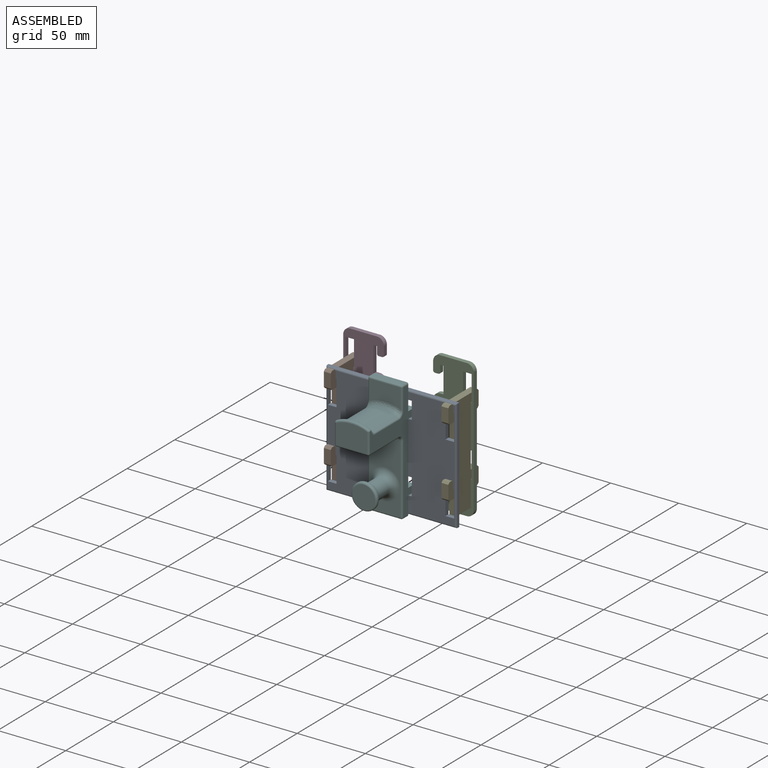
[diagram: assembled view]
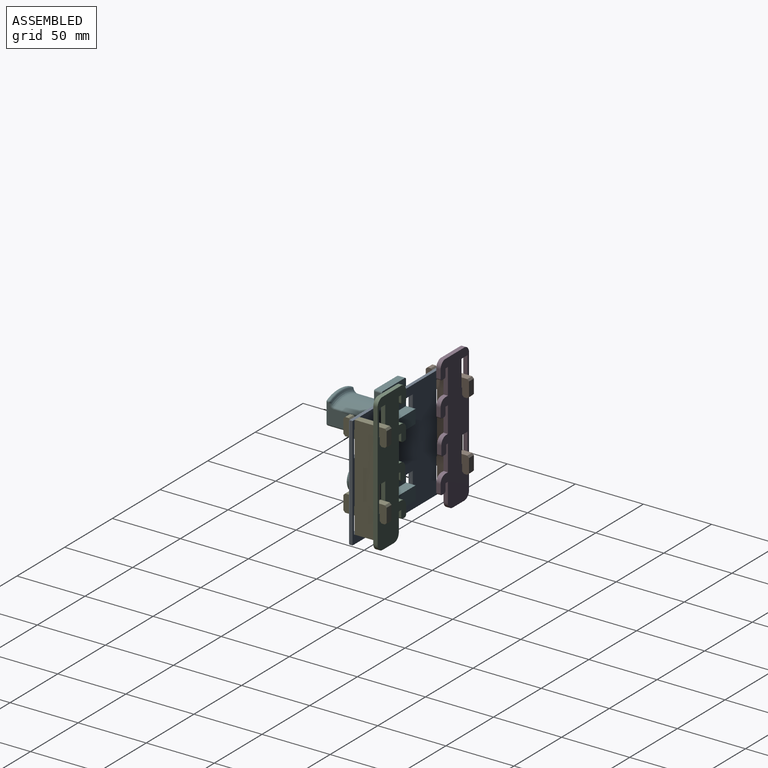
[diagram: assembled view, second angle]
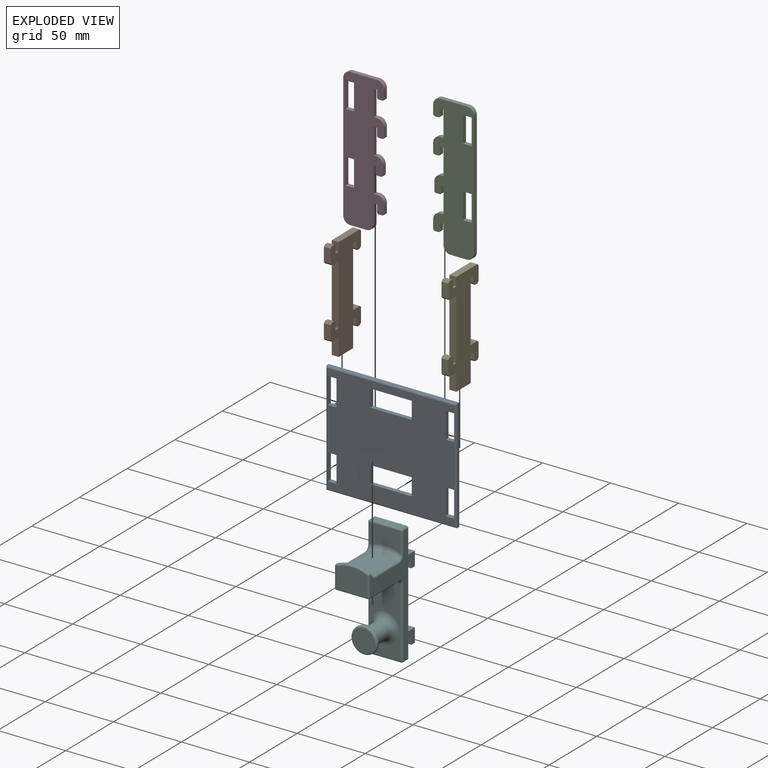
[diagram: exploded view]
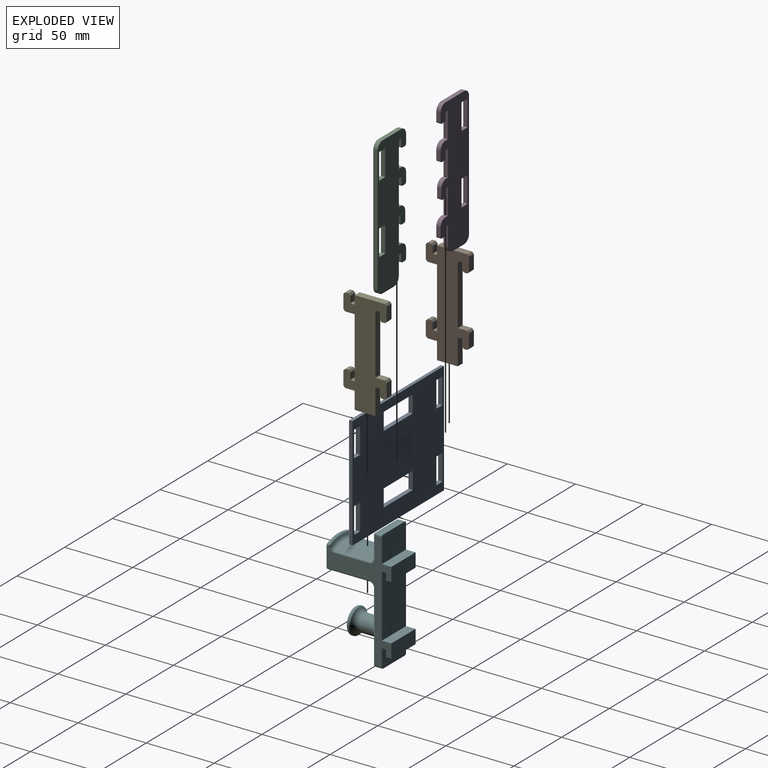
[diagram: exploded view, second angle]
ASSEMBLY  parts=6 mates=5
PART A: 34 faces, bbox 95.9x3.2x82.6 mm
  f0: plane 12.7x3.18mm, normal (1,0,0), area 40.3mm2, adj f1,f27,f28,f29
  f1: plane 30.48x3.18mm, normal (0,0,-1), area 96.8mm2, adj f0,f2,f28,f29
  f2: plane 12.7x3.18mm, normal (-1,0,0), area 40.3mm2, adj f1,f27,f28,f29
  f3: plane 12.7x3.18mm, normal (1,0,0), area 40.3mm2, adj f4,f21,f28,f29
  f4: plane 30.48x3.18mm, normal (0,0,-1), area 96.8mm2, adj f3,f5,f28,f29
  f5: plane 12.7x3.18mm, normal (-1,0,0), area 40.3mm2, adj f4,f21,f28,f29
  f6: plane 19.05x3.18mm, normal (1,0,0), area 60.5mm2, adj f7,f22,f28,f29
  f7: plane 6.35x3.18mm, normal (0,0,-1), area 20.2mm2, adj f6,f8,f28,f29
  f8: plane 19.05x3.18mm, normal (-1,0,0), area 60.5mm2, adj f7,f22,f28,f29
  f9: plane 19.07x3.18mm, normal (-1,0,0), area 60.6mm2, adj f10,f23,f28,f29
  f10: plane 6.35x3.18mm, normal (0,0,1), area 20.2mm2, adj f9,f11,f28,f29
  f11: plane 19.05x3.18mm, normal (1,0,0), area 60.5mm2, adj f10,f23,f28,f29
  f12: plane 6.35x3.18mm, normal (0,0,1), area 20.2mm2, adj f13,f24,f28,f29
  f13: plane 19.05x3.18mm, normal (1,0,0), area 60.5mm2, adj f12,f14,f28,f29
  f14: plane 6.35x3.18mm, normal (0,0,-1), area 20.2mm2, adj f13,f24,f28,f29
  f15: plane 6.35x3.18mm, normal (0,0,1), area 20.2mm2, adj f16,f25,f28,f29
  f16: plane 19.07x3.18mm, normal (1,0,0), area 60.6mm2, adj f15,f17,f28,f29
  f17: plane 6.35x3.18mm, normal (0,0,-1), area 20.2mm2, adj f16,f25,f28,f29
  f18: plane 95.89x1.91mm, normal (0,0,-1), area 182.7mm2, adj f19,f26,f29,f32
  f19: plane 82.55x1.91mm, normal (1,0,0), area 157.3mm2, adj f18,f20,f29,f30
  f20: plane 95.89x1.91mm, normal (0,0,1), area 182.7mm2, adj f19,f26,f29,f31
  f21: plane 30.48x3.18mm, normal (0,0,1), area 96.8mm2, adj f3,f5,f28,f29
  f22: plane 6.35x3.18mm, normal (0,0,1), area 20.2mm2, adj f6,f8,f28,f29
  f23: plane 6.35x3.18mm, normal (0,0,-1), area 20.2mm2, adj f9,f11,f28,f29
  f24: plane 19.05x3.18mm, normal (-1,0,0), area 60.5mm2, adj f12,f14,f28,f29
  f25: plane 19.05x3.18mm, normal (-1,0,0), area 60.5mm2, adj f15,f17,f28,f29
  f26: plane 82.55x1.91mm, normal (-1,0,0), area 157.3mm2, adj f18,f20,f29,f33
  f27: plane 30.48x3.18mm, normal (0,0,1), area 96.8mm2, adj f0,f2,f28,f29
  f28: plane 93.35x80.01mm, normal (0,-1,0), area 6210.3mm2, adj f0,f1,f2,f3,f4,f5,f6,f7
  f29: plane 95.89x82.55mm, normal (0,1,0), area 6657.1mm2, adj f0,f1,f2,f3,f4,f5,f6,f7
  f30: cylinder r=1.27mm len=82.55mm, axis (0,0,-1), area 162.8mm2, adj f19,f28,f31,f32
  f31: cylinder r=1.27mm len=95.89mm, axis (1,0,0), area 189.4mm2, adj f20,f28,f30,f33
  f32: cylinder r=1.27mm len=95.89mm, axis (-1,0,0), area 189.4mm2, adj f18,f28,f30,f33
  f33: cylinder r=1.27mm len=82.55mm, axis (0,0,1), area 162.8mm2, adj f26,f28,f31,f32
PART B: 40 faces, bbox 31.8x5.1x76.2 mm
  f0: plane 5.08x3.18mm, normal (0,0,-1), area 16.1mm2, adj f1,f25,f26,f27
  f1: plane 19.05x5.08mm, normal (-1,0,0), area 96.8mm2, adj f0,f2,f26,f27
  f2: plane 15.24x5.08mm, normal (0,0,-1), area 77.4mm2, adj f1,f3,f26,f27
  f3: plane 12.7x5.08mm, normal (1,0,0), area 64.5mm2, adj f2,f4,f26,f27
  f4: plane 6.99x5.08mm, normal (0,0,-1), area 35.5mm2, adj f3,f26,f27,f31
  f5: plane 10.16x5.08mm, normal (1,0,0), area 51.6mm2, adj f26,f27,f31,f33
  f6: plane 5.08x2.54mm, normal (0,0,1), area 12.9mm2, adj f26,f27,f32,f33
  f7: plane 5.08x5.08mm, normal (-1,0,0), area 25.8mm2, adj f8,f26,f27,f32
  f8: plane 5.08x3.18mm, normal (0,0,1), area 16.1mm2, adj f7,f9,f26,f27
  f9: plane 44.45x5.08mm, normal (1,0,0), area 225.8mm2, adj f8,f10,f26,f27
  f10: plane 6.99x5.08mm, normal (0,0,-1), area 35.5mm2, adj f9,f26,f27,f37
  f11: plane 10.16x5.08mm, normal (1,0,0), area 51.6mm2, adj f26,f27,f37,f38
  f12: plane 5.08x2.54mm, normal (0,0,1), area 12.9mm2, adj f26,f27,f38,f39
  f13: plane 5.08x5.08mm, normal (-1,0,0), area 25.8mm2, adj f14,f26,f27,f39
  f14: plane 5.08x3.18mm, normal (0,0,1), area 16.1mm2, adj f13,f15,f26,f27
  f15: plane 6.35x5.08mm, normal (1,0,0), area 32.3mm2, adj f14,f16,f26,f27
  f16: plane 22.23x5.08mm, normal (0,0,1), area 112.9mm2, adj f15,f26,f27,f34
  f17: plane 10.16x5.08mm, normal (-1,0,0), area 51.6mm2, adj f26,f27,f34,f35
  f18: plane 5.08x2.54mm, normal (0,0,-1), area 12.9mm2, adj f26,f27,f35,f36
  f19: plane 5.08x5.08mm, normal (1,0,0), area 25.8mm2, adj f20,f26,f27,f36
  f20: plane 5.08x3.18mm, normal (0,0,-1), area 16.1mm2, adj f19,f21,f26,f27
  f21: plane 44.45x5.08mm, normal (-1,0,0), area 225.8mm2, adj f20,f22,f26,f27
  f22: plane 6.99x5.08mm, normal (0,0,1), area 35.5mm2, adj f21,f26,f27,f30
  f23: plane 10.16x5.08mm, normal (-1,0,0), area 51.6mm2, adj f26,f27,f29,f30
  f24: plane 5.08x2.54mm, normal (0,0,-1), area 12.9mm2, adj f26,f27,f28,f29
  f25: plane 5.08x5.08mm, normal (1,0,0), area 25.8mm2, adj f0,f26,f27,f28
  f26: plane 76.2x31.75mm, normal (0,-1,0), area 1490.3mm2, adj f0,f1,f2,f3,f4,f5,f6,f7
  f27: plane 76.2x31.75mm, normal (0,1,0), area 1490.3mm2, adj f0,f1,f2,f3,f4,f5,f6,f7
  f28: plane 5.08x1.27mm, normal (0.71,0,-0.71), area 9.1mm2, adj f24,f25,f26,f27
  f29: plane 5.08x1.27mm, normal (-0.71,0,-0.71), area 9.1mm2, adj f23,f24,f26,f27
  f30: plane 5.08x1.27mm, normal (-0.71,0,0.71), area 9.1mm2, adj f22,f23,f26,f27
  f31: plane 5.08x1.27mm, normal (0.71,0,-0.71), area 9.1mm2, adj f4,f5,f26,f27
  f32: plane 5.08x1.27mm, normal (-0.71,0,0.71), area 9.1mm2, adj f6,f7,f26,f27
  f33: plane 5.08x1.27mm, normal (0.71,0,0.71), area 9.1mm2, adj f5,f6,f26,f27
  f34: plane 5.08x1.27mm, normal (-0.71,0,0.71), area 9.1mm2, adj f16,f17,f26,f27
  f35: plane 5.08x1.27mm, normal (-0.71,0,-0.71), area 9.1mm2, adj f17,f18,f26,f27
  f36: plane 5.08x1.27mm, normal (0.71,0,-0.71), area 9.1mm2, adj f18,f19,f26,f27
  f37: plane 5.08x1.27mm, normal (0.71,0,-0.71), area 9.1mm2, adj f10,f11,f26,f27
  f38: plane 5.08x1.27mm, normal (0.71,0,0.71), area 9.1mm2, adj f11,f12,f26,f27
  f39: plane 5.08x1.27mm, normal (-0.71,0,0.71), area 9.1mm2, adj f12,f13,f26,f27
PART C: 51 faces, bbox 29.8x3.2x101.6 mm
  f0: plane 19.05x3.18mm, normal (1,0,0), area 60.5mm2, adj f1,f33,f34,f35
  f1: plane 6.35x3.18mm, normal (0,0,-1), area 20.2mm2, adj f0,f2,f34,f35
  f2: plane 19.05x3.18mm, normal (-1,0,0), area 60.5mm2, adj f1,f33,f34,f35
  f3: plane 6.35x3.18mm, normal (0,0,1), area 20.2mm2, adj f4,f31,f34,f35
  f4: plane 19.05x3.18mm, normal (1,0,0), area 60.5mm2, adj f3,f5,f34,f35
  f5: plane 6.35x3.18mm, normal (0,0,-1), area 20.2mm2, adj f4,f31,f34,f35
  f6: plane 19.07x3.18mm, normal (1,0,0), area 60.6mm2, adj f7,f32,f34,f35
  f7: plane 3.18x1.69mm, normal (0,0,-1), area 5.4mm2, adj f6,f8,f34,f35
  f8: plane 5.08x3.18mm, normal (-1,0,0), area 16.1mm2, adj f7,f34,f35,f47
  f9: plane 3.18x2.54mm, normal (0,0,-1), area 8.1mm2, adj f34,f35,f47,f48
  f10: plane 6.35x3.18mm, normal (1,0,0), area 20.2mm2, adj f34,f35,f41,f48
  f11: plane 3.18x1.69mm, normal (0,0,1), area 5.4mm2, adj f12,f34,f35,f41
  f12: plane 19.03x3.18mm, normal (1,0,0), area 60.4mm2, adj f11,f13,f34,f35
  f13: plane 3.18x2.54mm, normal (0,0,-1), area 8.1mm2, adj f12,f14,f34,f35
  f14: plane 5.08x3.18mm, normal (-1,0,0), area 16.1mm2, adj f13,f34,f35,f45
  f15: plane 3.18x2.54mm, normal (0,0,-1), area 8.1mm2, adj f34,f35,f45,f46
  f16: plane 6.35x3.18mm, normal (1,0,0), area 20.2mm2, adj f34,f35,f40,f46
  f17: plane 3.18x2.54mm, normal (0,0,1), area 8.1mm2, adj f18,f34,f35,f40
  f18: plane 19.05x3.18mm, normal (1,0,0), area 60.5mm2, adj f17,f19,f34,f35
  f19: plane 3.18x2.54mm, normal (0,0,-1), area 8.1mm2, adj f18,f20,f34,f35
  f20: plane 5.08x3.18mm, normal (-1,0,0), area 16.1mm2, adj f19,f34,f35,f43
  f21: plane 3.18x2.54mm, normal (0,0,-1), area 8.1mm2, adj f34,f35,f43,f44
  f22: plane 6.35x3.18mm, normal (1,0,0), area 20.2mm2, adj f34,f35,f39,f44
  f23: plane 19.69x3.18mm, normal (0,0,1), area 62.5mm2, adj f34,f35,f37,f39
  f24: plane 91.44x3.18mm, normal (-1,0,0), area 290.3mm2, adj f34,f35,f37,f38
  f25: plane 12.07x3.18mm, normal (0,0,-1), area 38.3mm2, adj f34,f35,f36,f38
  f26: plane 13.97x3.18mm, normal (1,0,0), area 44.4mm2, adj f27,f34,f35,f36
  f27: plane 3.18x2.54mm, normal (0,0,-1), area 8.1mm2, adj f26,f28,f34,f35
  f28: plane 5.08x3.18mm, normal (-1,0,0), area 16.1mm2, adj f27,f34,f35,f49
  f29: plane 3.18x2.54mm, normal (0,0,-1), area 8.1mm2, adj f34,f35,f49,f50
  f30: plane 6.35x3.18mm, normal (1,0,0), area 20.2mm2, adj f34,f35,f42,f50
  f31: plane 19.07x3.18mm, normal (-1,0,0), area 60.6mm2, adj f3,f5,f34,f35
  f32: plane 3.18x2.54mm, normal (0,0,1), area 8.1mm2, adj f6,f34,f35,f42
  f33: plane 6.35x3.18mm, normal (0,0,1), area 20.2mm2, adj f0,f2,f34,f35
  f34: plane 101.6x29.85mm, normal (0,-1,0), area 2291.7mm2, adj f0,f1,f2,f3,f4,f5,f6,f7
  f35: plane 101.6x29.85mm, normal (0,1,0), area 2291.7mm2, adj f0,f1,f2,f3,f4,f5,f6,f7
  f36: cylinder r=5.08mm len=5.08mm, axis (0,-1,0), area 25.3mm2, adj f25,f26,f34,f35
  f37: cylinder r=5.08mm len=5.08mm, axis (0,1,0), area 25.3mm2, adj f23,f24,f34,f35
  f38: cylinder r=5.08mm len=5.08mm, axis (0,1,0), area 25.3mm2, adj f24,f25,f34,f35
  f39: cylinder r=5.08mm len=5.08mm, axis (0,-1,0), area 25.3mm2, adj f22,f23,f34,f35
  f40: cylinder r=5.08mm len=5.08mm, axis (0,1,0), area 25.3mm2, adj f16,f17,f34,f35
  f41: cylinder r=5.08mm len=5.08mm, axis (0,1,0), area 25.3mm2, adj f10,f11,f34,f35
  f42: cylinder r=5.08mm len=5.08mm, axis (0,1,0), area 25.3mm2, adj f30,f32,f34,f35
  f43: cylinder r=1.27mm len=3.18mm, axis (0,1,0), area 6.3mm2, adj f20,f21,f34,f35
  f44: cylinder r=1.27mm len=3.18mm, axis (0,1,0), area 6.3mm2, adj f21,f22,f34,f35
  f45: cylinder r=1.27mm len=3.18mm, axis (0,1,0), area 6.3mm2, adj f14,f15,f34,f35
  f46: cylinder r=1.27mm len=3.18mm, axis (0,1,0), area 6.3mm2, adj f15,f16,f34,f35
  f47: cylinder r=1.27mm len=3.18mm, axis (0,1,0), area 6.3mm2, adj f8,f9,f34,f35
  f48: cylinder r=1.27mm len=3.18mm, axis (0,1,0), area 6.3mm2, adj f9,f10,f34,f35
  f49: cylinder r=1.27mm len=3.18mm, axis (0,1,0), area 6.3mm2, adj f28,f29,f34,f35
  f50: cylinder r=1.27mm len=3.18mm, axis (0,1,0), area 6.3mm2, adj f29,f30,f34,f35
PART D: same geometry as C
PART E: same geometry as B
PART F: 71 faces, bbox 48.3x32.6x88.9 mm
  f0: plane 22.86x19.05mm, normal (1,0,0), area 230.3mm2, adj f26,f37,f61,f70
  f1: plane 31.98x22.86mm, normal (1,0,0), area 525.9mm2, adj f22,f26,f37,f70
  f2: plane 25.4x5.08mm, normal (1,0,0), area 129mm2, adj f3,f16,f17,f18
  f3: plane 25.4x3.18mm, normal (0,0,-1), area 80.6mm2, adj f2,f4,f17,f18
  f4: plane 45.72x25.4mm, normal (-1,0,0), area 1161.3mm2, adj f3,f5,f17,f18
  f5: plane 25.4x6.99mm, normal (0,0,1), area 177.4mm2, adj f4,f6,f17,f18
  f6: plane 25.4x10.16mm, normal (-1,0,0), area 258.1mm2, adj f5,f7,f17,f18
  f7: plane 25.4x3.81mm, normal (0,0,-1), area 96.8mm2, adj f6,f8,f17,f18
  f8: plane 25.4x5.08mm, normal (1,0,0), area 129mm2, adj f7,f9,f17,f18
  f9: plane 25.4x3.18mm, normal (0,0,-1), area 80.6mm2, adj f8,f10,f17,f18
  f10: plane 25.4x13.97mm, normal (-1,0,0), area 354.1mm2, adj f9,f11,f17,f18,f59,f63
  f11: plane 22.86x5.08mm, normal (0,0,-1), area 116.1mm2, adj f10,f59,f61,f63
  f12: plane 22.87x14.83mm, normal (1,0,0), area 302.4mm2, adj f21,f46,f49,f52
  f13: plane 25.4x19.05mm, normal (-1,0,0), area 483.2mm2, adj f14,f17,f18,f39,f47,f50
  f14: plane 25.4x6.99mm, normal (0,0,1), area 177.4mm2, adj f13,f15,f17,f18
  f15: plane 25.4x10.16mm, normal (-1,0,0), area 258.1mm2, adj f14,f16,f17,f18
  f16: plane 25.4x3.81mm, normal (0,0,-1), area 96.8mm2, adj f2,f15,f17,f18
  f17: plane 86.36x46.99mm, normal (0,-1,0), area 949.4mm2, adj f2,f3,f4,f5,f6,f7,f8,f9
  f18: plane 86.36x46.99mm, normal (0,1,0), area 949.4mm2, adj f2,f3,f4,f5,f6,f7,f8,f9
  f19: extruded ~25.4x24.22mm, area 643.8mm2, adj f21,f25,f44,f54
  f20: plane 30.48x22.86mm, normal (0,0,-1), area 696.8mm2, adj f22,f29,f33,f35
  f21: bspline ~30.85x7.73mm, area 120.4mm2, adj f12,f19,f45,f53
  f22: cylinder r=3.17mm len=22.86mm, axis (0,1,0), area 114mm2, adj f1,f20,f27,f36
  f23: plane 22.87x17.13mm, normal (1,0,0), area 373.6mm2, adj f28,f30,f32,f33
  f24: extruded ~23.99x2.61mm, area 20.3mm2, adj f30,f38,f41,f57
  f25: bspline ~29.24x6.9mm, area 99mm2, adj f19,f38,f43,f55
  f26: cylinder r=1.27mm len=51.03mm, axis (0,0,1), area 101.8mm2, adj f0,f1,f18,f27,f60
  f27: torus R=4.45mm, axis (0,-1,0), area 11.4mm2, adj f18,f22,f26,f29
  f28: cylinder r=1.27mm len=14.65mm, axis (0,0,1), area 29.2mm2, adj f18,f23,f31,f58
  f29: cylinder r=1.27mm len=30.48mm, axis (-1,0,0), area 60.8mm2, adj f18,f20,f27,f31
  f30: bspline ~26.81x4.5mm, area 48.5mm2, adj f23,f24,f40,f58
  f31: sphere r=1.27mm, area 1.6mm2, adj f28,f29,f33
  f32: cylinder r=1.27mm len=14.65mm, axis (0,0,-1), area 29.2mm2, adj f17,f23,f34,f40
  f33: cylinder r=1.27mm len=22.86mm, axis (0,-1,0), area 45.6mm2, adj f20,f23,f31,f34
  f34: sphere r=1.27mm, area 2.5mm2, adj f32,f33,f35
  f35: cylinder r=1.27mm len=30.48mm, axis (1,0,0), area 60.8mm2, adj f17,f20,f34,f36
  f36: torus R=4.45mm, axis (0,-1,0), area 11.4mm2, adj f17,f22,f35,f37
  f37: cylinder r=1.27mm len=51.03mm, axis (0,0,-1), area 101.8mm2, adj f0,f1,f17,f36,f62
  f38: bspline ~27.09x4.28mm, area 39.8mm2, adj f24,f25,f42,f56
  f39: plane 22.86x5.08mm, normal (0,0,1), area 116.1mm2, adj f13,f47,f49,f50
  f40: sphere r=1.27mm, area 1.3mm2, adj f30,f32,f41
  f41: cylinder r=1.27mm len=1.14mm, axis (-1,0,0), area 1.2mm2, adj f17,f24,f40,f42
  f42: sphere r=1.27mm, area 1.5mm2, adj f38,f41,f43
  f43: bspline ~5.23x4.19mm, area 7.7mm2, adj f17,f25,f42,f44
  f44: cylinder r=1.27mm len=25.4mm, axis (-1,0,0), area 32.4mm2, adj f17,f19,f43,f45
  f45: bspline ~6.19x5.33mm, area 10.1mm2, adj f17,f21,f44,f46
  f46: cylinder r=1.27mm len=14.82mm, axis (0,0,-1), area 29.6mm2, adj f12,f17,f45,f48
  f47: cylinder r=1.27mm len=5.08mm, axis (1,0,0), area 10.1mm2, adj f13,f17,f39,f48
  f48: sphere r=1.27mm, area 2.5mm2, adj f46,f47,f49
  f49: cylinder r=1.27mm len=22.86mm, axis (0,1,0), area 45.6mm2, adj f12,f39,f48,f51
  f50: cylinder r=1.27mm len=5.08mm, axis (-1,0,0), area 10.1mm2, adj f13,f18,f39,f51
  f51: sphere r=1.27mm, area 2.5mm2, adj f49,f50,f52
  f52: cylinder r=1.27mm len=14.82mm, axis (0,0,1), area 29.6mm2, adj f12,f18,f51,f53
  f53: bspline ~6.19x5.33mm, area 10.1mm2, adj f18,f21,f52,f54
  f54: cylinder r=1.27mm len=25.4mm, axis (-1,0,0), area 32.4mm2, adj f18,f19,f53,f55
  f55: bspline ~4.88x4.68mm, area 7.7mm2, adj f18,f25,f54,f56
  f56: sphere r=1.27mm, area 1.5mm2, adj f38,f55,f57
  f57: cylinder r=1.27mm len=1.14mm, axis (-1,0,0), area 1.2mm2, adj f18,f24,f56,f58
  f58: sphere r=1.27mm, area 1.3mm2, adj f28,f30,f57
  f59: cylinder r=1.27mm len=5.08mm, axis (1,0,0), area 10.1mm2, adj f10,f11,f18,f60
  f60: sphere r=1.27mm, area 3.5mm2, adj f26,f59,f61
  f61: cylinder r=1.27mm len=22.86mm, axis (0,1,0), area 45.6mm2, adj f0,f11,f60,f62
  f62: sphere r=1.27mm, area 2.5mm2, adj f37,f61,f63
  f63: cylinder r=1.27mm len=5.08mm, axis (-1,0,0), area 10.1mm2, adj f10,f11,f17,f62
  f64: cylinder r=6.35mm len=12.7mm, axis (-1,0,0), area 388.6mm2, adj f69,f70
  f65: plane 16.51x16.51mm, normal (1,0,0), area 214.1mm2, adj f68
  f66: cylinder r=9.53mm len=19.05mm, axis (1,0,0), area 38mm2, adj f67,f68
  f67: torus R=8.26mm, axis (1,0,0), area 77.8mm2, adj f66,f69
  f68: torus R=8.26mm, axis (1,0,0), area 113.6mm2, adj f65,f66
  f69: torus R=11.43mm, axis (1,0,0), area 241.6mm2, adj f64,f67
  f70: torus R=11.43mm, axis (1,0,0), area 410.9mm2, adj f0,f1,f64
PLACE A t=(80.76,37.13,-15.56)mm
PLACE B rot(axis=(0,0,-1),90deg) t=(69.44,55.54,46.75)mm
PLACE C rot(axis=(0,0,-1),180deg) t=(135.8,52.37,15.21)mm
PLACE D t=(84.36,55.54,15.21)mm
PLACE E rot(axis=(0,0,-1),90deg) t=(155.8,55.54,46.75)mm
PLACE F rot(axis=(0,0,-1),90deg) t=(122.78,33.95,0.49)mm
MATE planar C.f33 <-> E.f20  axis (0,0,1) through (153.26,53.96,46.75)mm
MATE planar F.f3 <-> A.f21  axis (0,0,-1) through (110.08,35.54,34.05)mm
MATE planar D.f33 <-> B.f20  axis (0,0,1) through (66.9,53.96,46.75)mm
MATE planar A.f7 <-> B.f14  axis (0,0,-1) through (66.9,35.54,46.75)mm
MATE planar E.f14 <-> A.f14  axis (0,0,1) through (153.26,35.54,46.75)mm
